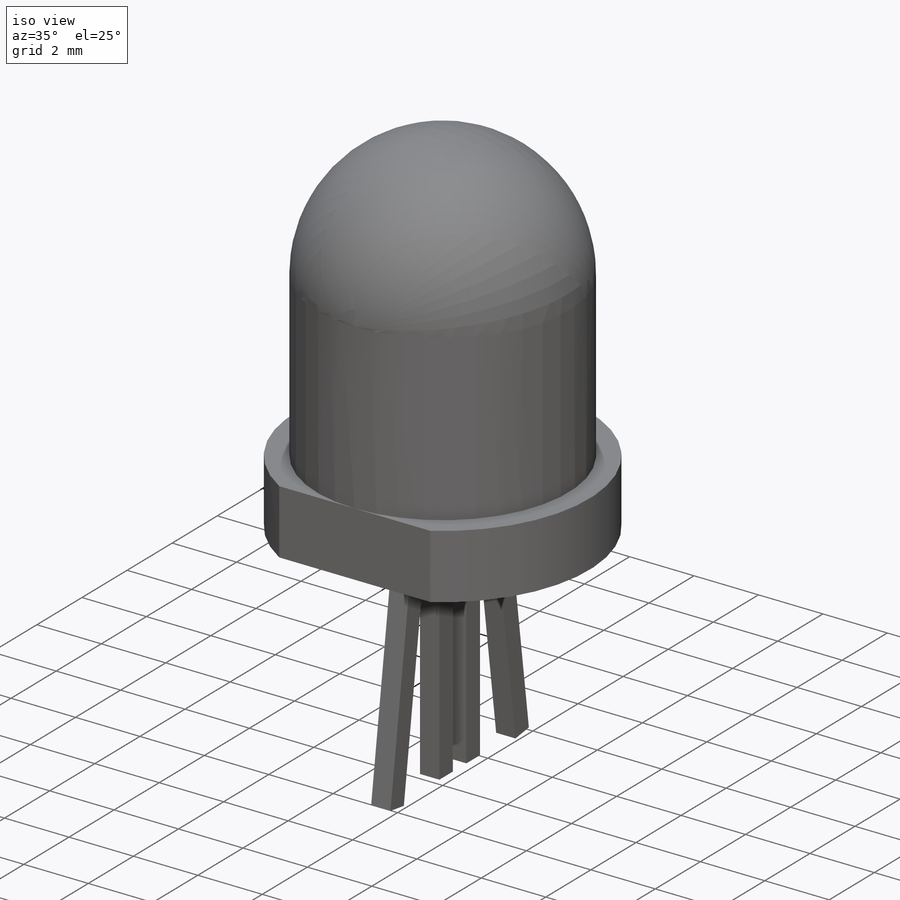
[diagram: iso view]
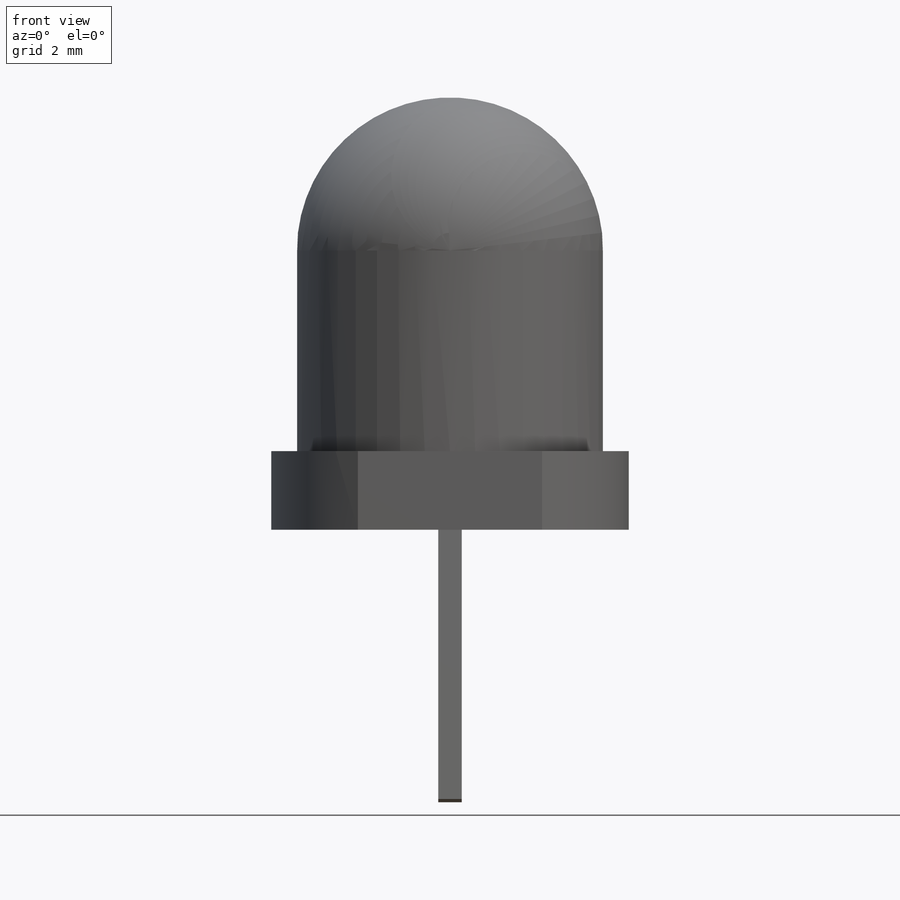
[diagram: front view]
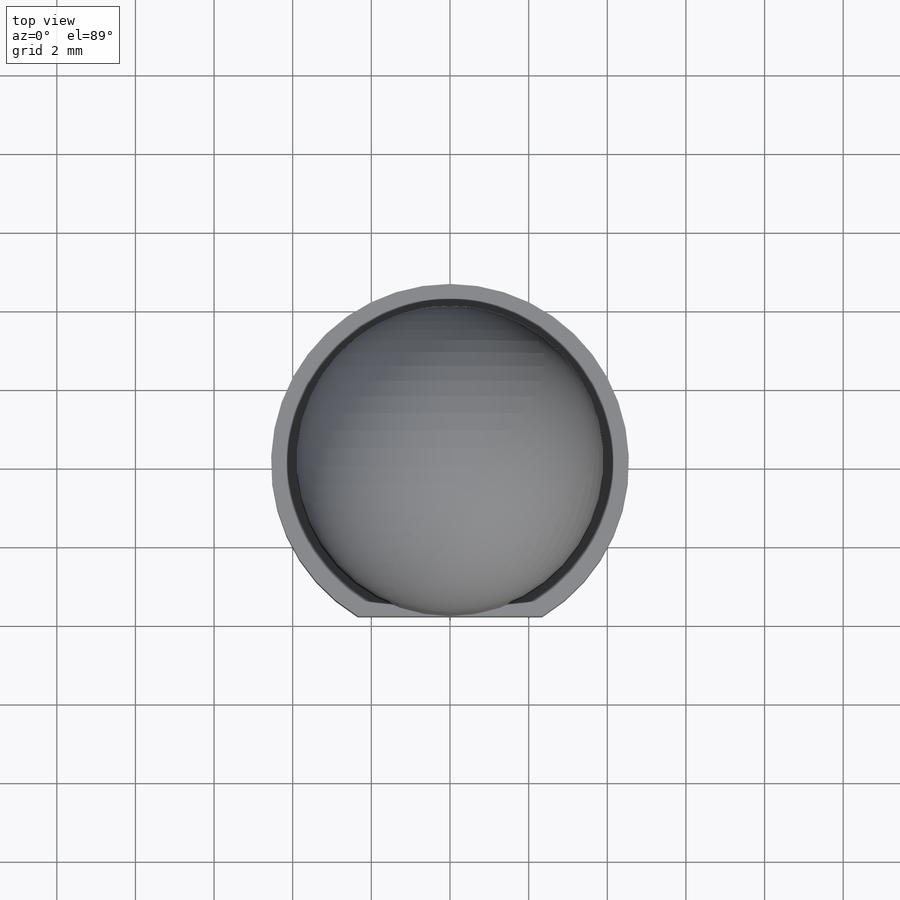
[diagram: top view]
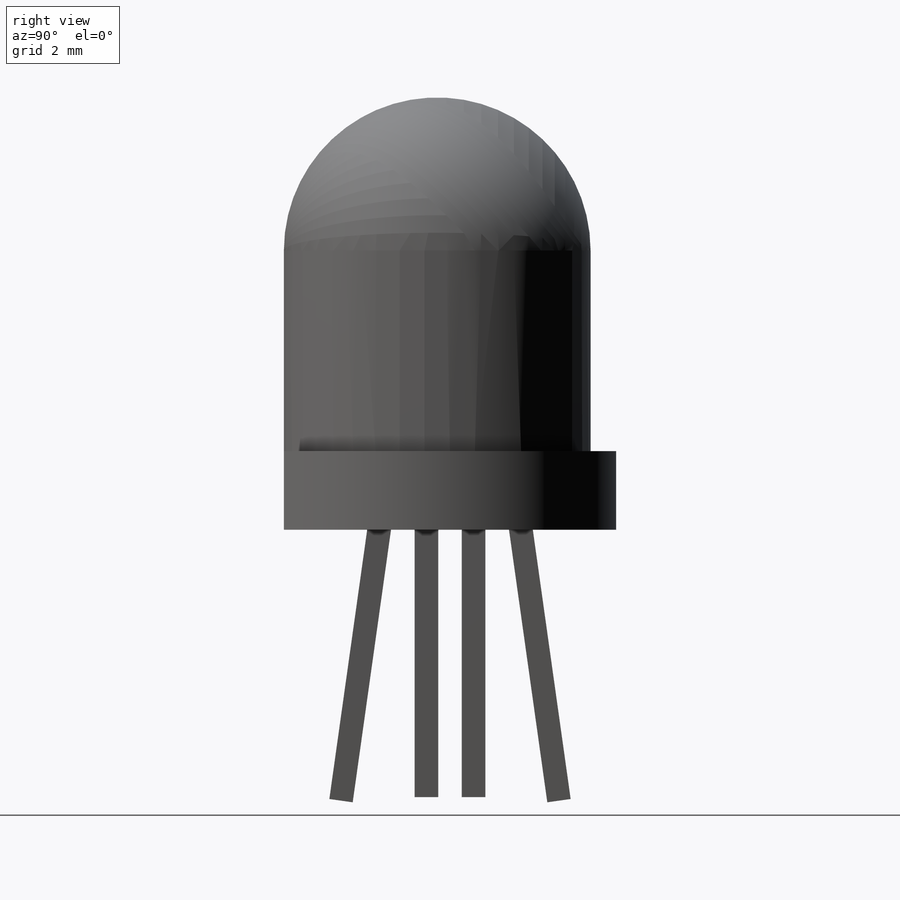
[diagram: right view]
SOLIDWORKS PART (.sldprt)
format: sldprt  version: not decoded by parser v0  size: 237,056 bytes
history: native  units: mm
features: sketch x7, plane x5, extrude x5, material x1, fillet x1 (+9 scaffold rows collapsed)
feature tree (28):
  scaffold x9  (default folders/planes/origin — collapsed)
  material  "Matériau <non spécifié>"
  plane  "Plan de face"
  plane  "Plan de dessus"
  plane  "Plan de droite"
  sketch  "Esquisse1"  dims[D1=7.8mm]
  extrude  "Boss.-Extru.1"  Depth=9mm
  fillet  "Congé1"  Radius=3.9mm
  sketch  "Esquisse2"  dims[D1=9.1mm]
  extrude  "Boss.-Extru.2"  Depth=2mm
  sketch  "Esquisse3"  dims[D1=1.2mm D2=0.6mm D3=0.6mm D4=0.6mm D5=0.6mm]
  extrude  "Boss.-Extru.3"  Depth=6.8mm
  sketch  "Esquisse5"  dims[D1=0.6mm]
  plane  "Plan1"
  sketch  "Esquisse6"  dims[D1=0.6mm D2=0.6mm D3=0.3mm]
  extrude  "Boss.-Extru.4"  Depth=7mm
  sketch  "Esquisse7"  dims[D1=0.6mm]
  plane  "Plan2"
  sketch  "Esquisse8"  dims[D1=0.6mm D2=0.6mm]
  extrude  "Boss.-Extru.5"  Depth=7mm
decode coverage: 13 of 13 modeling features carry decoded parameters
note: suppression state not decoded; provenance and decode notes live in map.json
